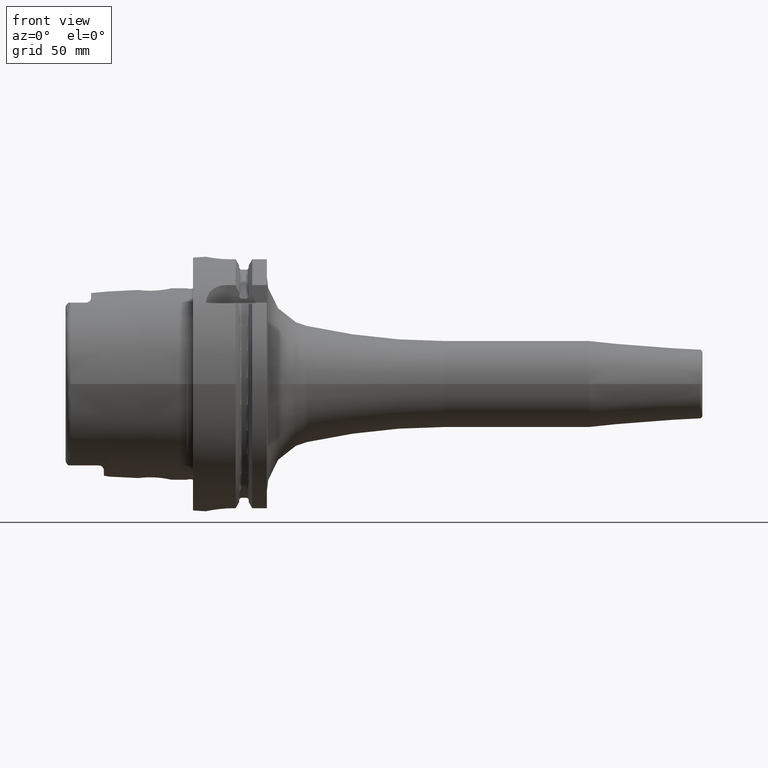
[diagram: clean part render]
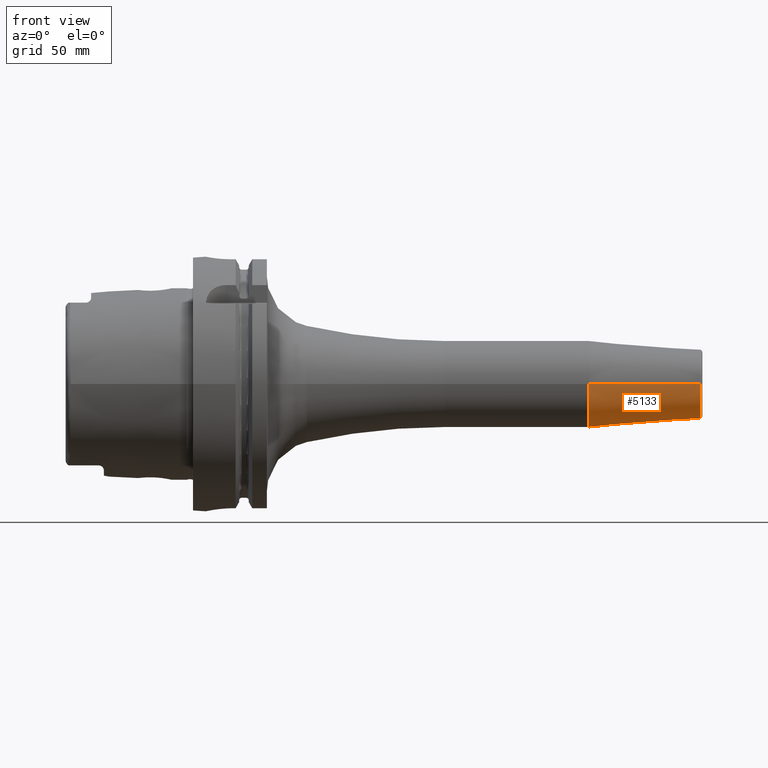
[diagram: same view with one face highlighted and labeled with its STEP entity id]
A machine part, front view. The second image highlights one B-rep face of the part: STEP entity #5133.
In plain terms, the highlighted conical surface has half-angle 4.5 deg.
Its self-contained STEP definition (entity closure, byte-faithful):
#1849=CARTESIAN_POINT('',(1.555282834234E2,0.E0,0.E0));
#1850=DIRECTION('',(-1.E0,0.E0,0.E0));
#1851=DIRECTION('',(0.E0,1.E0,0.E0));
#1852=AXIS2_PLACEMENT_3D('',#1849,#1850,#1851);
#1883=CARTESIAN_POINT('',(1.990784590957E2,0.E0,0.E0));
#1884=DIRECTION('',(-1.E0,0.E0,0.E0));
#1885=DIRECTION('',(0.E0,1.E0,0.E0));
#1886=AXIS2_PLACEMENT_3D('',#1883,#1884,#1885);
#1888=DIRECTION('',(-9.969173337331E-1,7.845909572784E-2,0.E0));
#1889=VECTOR('',#1888,4.368484145948E1);
#1890=CARTESIAN_POINT('',(1.990784590957E2,1.357252684207E1,
-1.580244900114E-13));
#1891=LINE('',#1890,#1889);
#1892=DIRECTION('',(-9.969173337331E-1,-7.845909572784E-2,0.E0));
#1893=VECTOR('',#1892,4.368484145948E1);
#1894=CARTESIAN_POINT('',(1.990784590957E2,-1.357252684207E1,
1.545974712683E-13));
#1895=LINE('',#1894,#1893);
#3149=CARTESIAN_POINT('',(1.555282834234E2,1.7E1,0.E0));
#3150=CARTESIAN_POINT('',(1.555282834234E2,-1.7E1,0.E0));
#3151=VERTEX_POINT('',#3149);
#3152=VERTEX_POINT('',#3150);
#3157=CARTESIAN_POINT('',(1.990784590957E2,1.357252684207E1,0.E0));
#3158=CARTESIAN_POINT('',(1.990784590957E2,-1.357252684207E1,0.E0));
#3159=VERTEX_POINT('',#3157);
#3160=VERTEX_POINT('',#3158);
#5122=CARTESIAN_POINT('',(1.773033712596E2,0.E0,0.E0));
#5123=DIRECTION('',(-1.E0,0.E0,0.E0));
#5124=DIRECTION('',(0.E0,1.E0,0.E0));
#5125=AXIS2_PLACEMENT_3D('',#5122,#5123,#5124);
#5126=CONICAL_SURFACE('',#5125,1.528626342104E1,4.5E0);
#5127=ORIENTED_EDGE('',*,*,#5113,.F.);
#5128=ORIENTED_EDGE('',*,*,#5088,.T.);
#5129=ORIENTED_EDGE('',*,*,#5058,.T.);
#5130=ORIENTED_EDGE('',*,*,#5085,.F.);
#5131=EDGE_LOOP('',(#5127,#5128,#5129,#5130));
#5132=FACE_OUTER_BOUND('',#5131,.F.);
#5133=ADVANCED_FACE('',(#5132),#5126,.T.);
#1853=CIRCLE('',#1852,1.7E1);
#1887=CIRCLE('',#1886,1.357252684207E1);
#5058=EDGE_CURVE('',#3151,#3152,#1853,.T.);
#5085=EDGE_CURVE('',#3160,#3152,#1895,.T.);
#5088=EDGE_CURVE('',#3159,#3151,#1891,.T.);
#5113=EDGE_CURVE('',#3159,#3160,#1887,.T.);